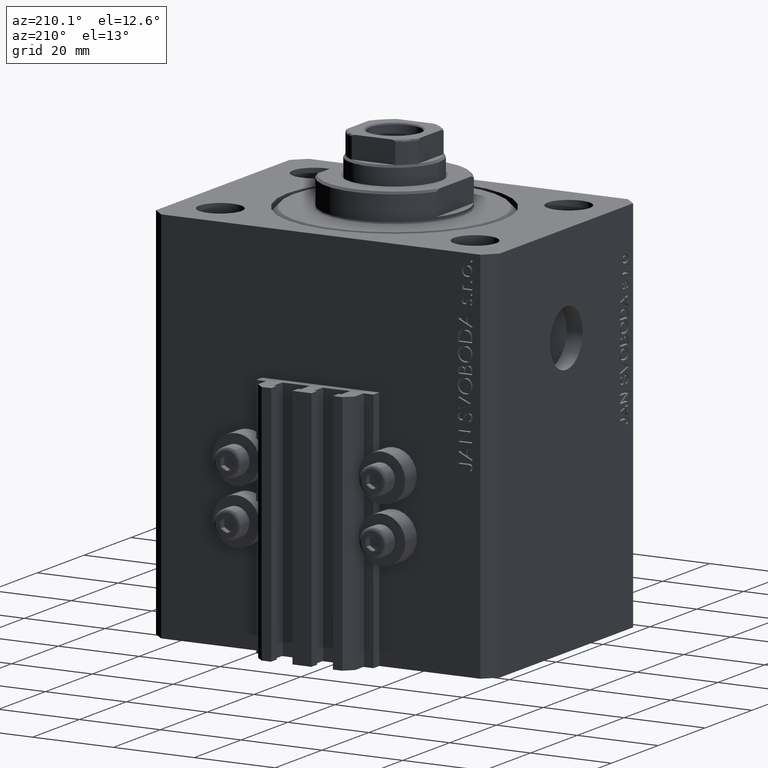
[diagram: clean part render]
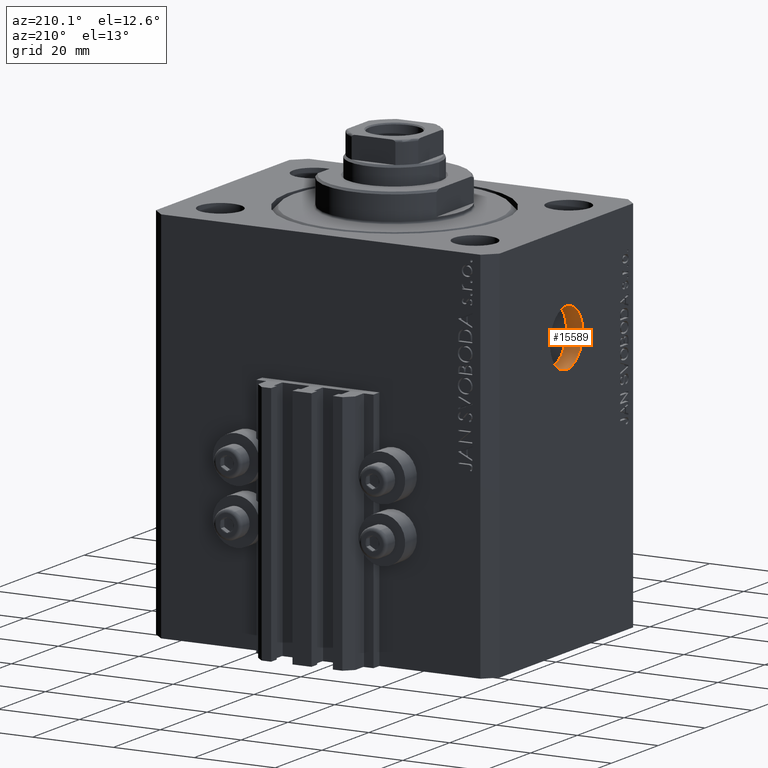
[diagram: same view with one face highlighted and labeled with its STEP entity id]
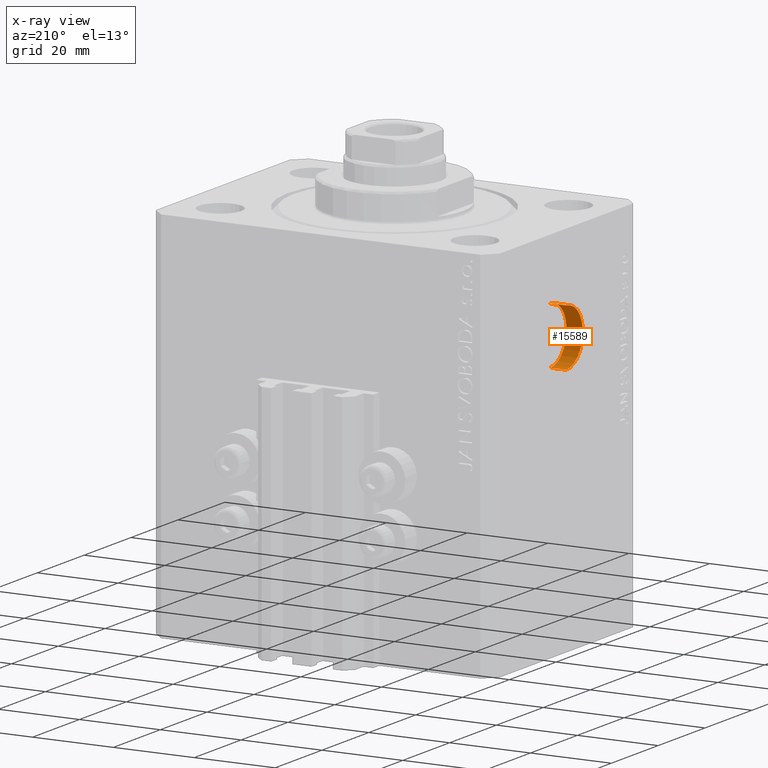
[diagram: x-ray of the same camera — body ghosted, the highlighted face saturated]
A machine part, auxiliary view. The second image highlights one B-rep face of the part: STEP entity #15589.
The next image is the same camera in x-ray: the body ghosted, the highlighted face saturated — about 0% of this face is hidden behind the body in this view.
In plain terms, the highlighted cylindrical surface (edge-blend (fillet) strip) has radius 7 mm, axis along (-1, -0, -0).
Its self-contained STEP definition (entity closure, byte-faithful):
#243 = CARTESIAN_POINT ( 'NONE',  ( -42.50000000000000000, 0.000000000000000000, -23.99999999999999645 ) ) ;
#959 = AXIS2_PLACEMENT_3D ( 'NONE', #243, #40566, #7857 ) ;
#1596 = DIRECTION ( 'NONE',  ( 0.000000000000000000, 0.000000000000000000, 1.000000000000000000 ) ) ;
#2286 = DIRECTION ( 'NONE',  ( -1.000000000000000000, -0.000000000000000000, -0.000000000000000000 ) ) ;
#2963 = VERTEX_POINT ( 'NONE', #41915 ) ;
#7857 = DIRECTION ( 'NONE',  ( 0.000000000000000000, 0.000000000000000000, 1.000000000000000000 ) ) ;
#10191 = DIRECTION ( 'NONE',  ( -1.000000000000000000, -0.000000000000000000, -0.000000000000000000 ) ) ;
#10434 = FACE_OUTER_BOUND ( 'NONE', #23602, .T. ) ;
#13483 = LINE ( 'NONE', #17076, #27836 ) ;
#15456 = VERTEX_POINT ( 'NONE', #45315 ) ;
#15589 = ADVANCED_FACE ( 'NONE', ( #10434 ), #31470, .F. ) ;
#16169 = CARTESIAN_POINT ( 'NONE',  ( -42.50000000000000000, 8.572527594031474176E-16, -31.00000000000000000 ) ) ;
#17076 = CARTESIAN_POINT ( 'NONE',  ( -38.50000000000000711, 0.000000000000000000, -16.99999999999999645 ) ) ;
#17139 = CIRCLE ( 'NONE', #23986, 6.999999999999999112 ) ;
#20023 = VECTOR ( 'NONE', #34726, 1000.000000000000000 ) ;
#20480 = CARTESIAN_POINT ( 'NONE',  ( -38.50000000000000711, 0.000000000000000000, -23.99999999999999645 ) ) ;
#20637 = ORIENTED_EDGE ( 'NONE', *, *, #28222, .F. ) ;
#21514 = ORIENTED_EDGE ( 'NONE', *, *, #33328, .T. ) ;
#21668 = CARTESIAN_POINT ( 'NONE',  ( -38.50000000000000711, 0.000000000000000000, -23.99999999999999645 ) ) ;
#22061 = EDGE_CURVE ( 'NONE', #27492, #27554, #34495, .T. ) ;
#23602 = EDGE_LOOP ( 'NONE', ( #20637, #21514, #28178, #31167 ) ) ;
#23986 = AXIS2_PLACEMENT_3D ( 'NONE', #21668, #43637, #1596 ) ;
#27492 = VERTEX_POINT ( 'NONE', #16169 ) ;
#27554 = VERTEX_POINT ( 'NONE', #37672 ) ;
#27836 = VECTOR ( 'NONE', #2286, 1000.000000000000000 ) ;
#28178 = ORIENTED_EDGE ( 'NONE', *, *, #22061, .T. ) ;
#28222 = EDGE_CURVE ( 'NONE', #2963, #15456, #17139, .T. ) ;
#30910 = LINE ( 'NONE', #45468, #20023 ) ;
#31167 = ORIENTED_EDGE ( 'NONE', *, *, #38818, .F. ) ;
#31470 = CYLINDRICAL_SURFACE ( 'NONE', #40295, 6.999999999999999112 ) ;
#33328 = EDGE_CURVE ( 'NONE', #2963, #27492, #30910, .T. ) ;
#34495 = CIRCLE ( 'NONE', #959, 6.999999999999999112 ) ;
#34726 = DIRECTION ( 'NONE',  ( -1.000000000000000000, -0.000000000000000000, -0.000000000000000000 ) ) ;
#35992 = DIRECTION ( 'NONE',  ( 0.000000000000000000, 0.000000000000000000, 1.000000000000000000 ) ) ;
#37672 = CARTESIAN_POINT ( 'NONE',  ( -42.50000000000000000, 0.000000000000000000, -16.99999999999999645 ) ) ;
#38818 = EDGE_CURVE ( 'NONE', #15456, #27554, #13483, .T. ) ;
#40295 = AXIS2_PLACEMENT_3D ( 'NONE', #20480, #10191, #35992 ) ;
#40566 = DIRECTION ( 'NONE',  ( -1.000000000000000000, 0.000000000000000000, 0.000000000000000000 ) ) ;
#41915 = CARTESIAN_POINT ( 'NONE',  ( -38.50000000000000711, 8.572527594031474176E-16, -31.00000000000000000 ) ) ;
#43637 = DIRECTION ( 'NONE',  ( -1.000000000000000000, 0.000000000000000000, 0.000000000000000000 ) ) ;
#45315 = CARTESIAN_POINT ( 'NONE',  ( -38.50000000000000711, 0.000000000000000000, -16.99999999999999645 ) ) ;
#45468 = CARTESIAN_POINT ( 'NONE',  ( -38.50000000000000711, 8.572527594031473190E-16, -30.99999999999999645 ) ) ;